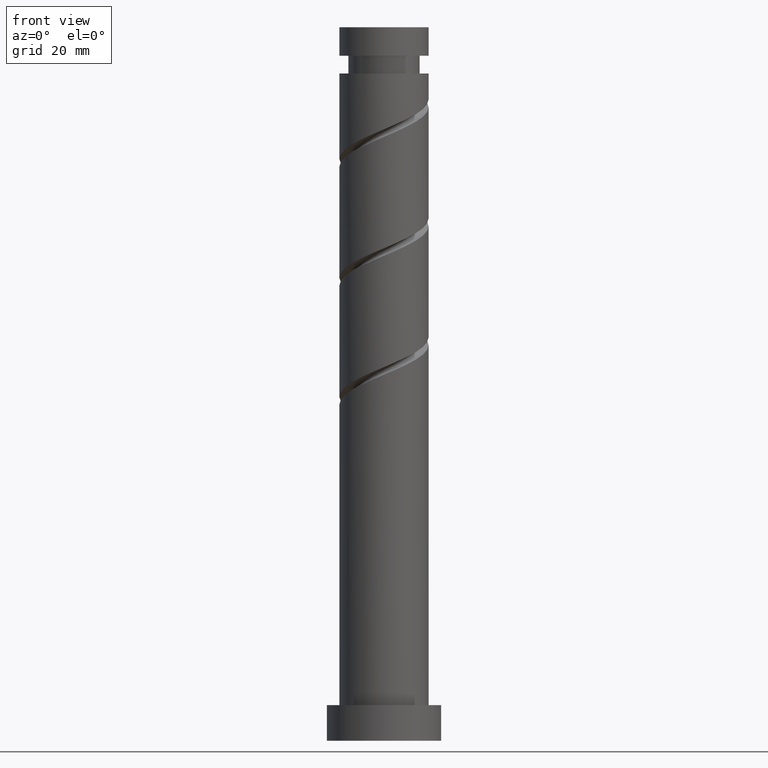
[diagram: clean part render]
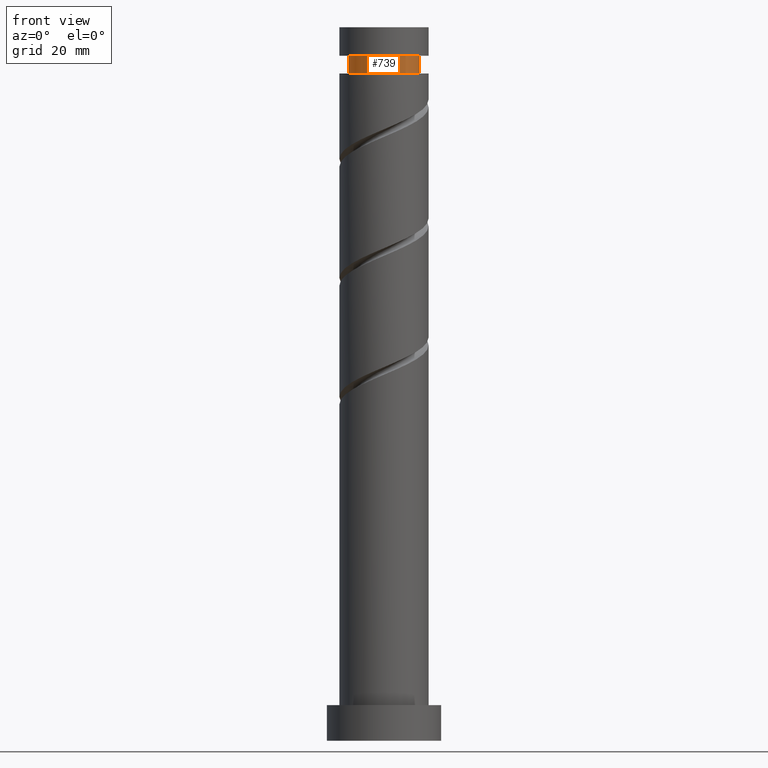
[diagram: same view with one face highlighted and labeled with its STEP entity id]
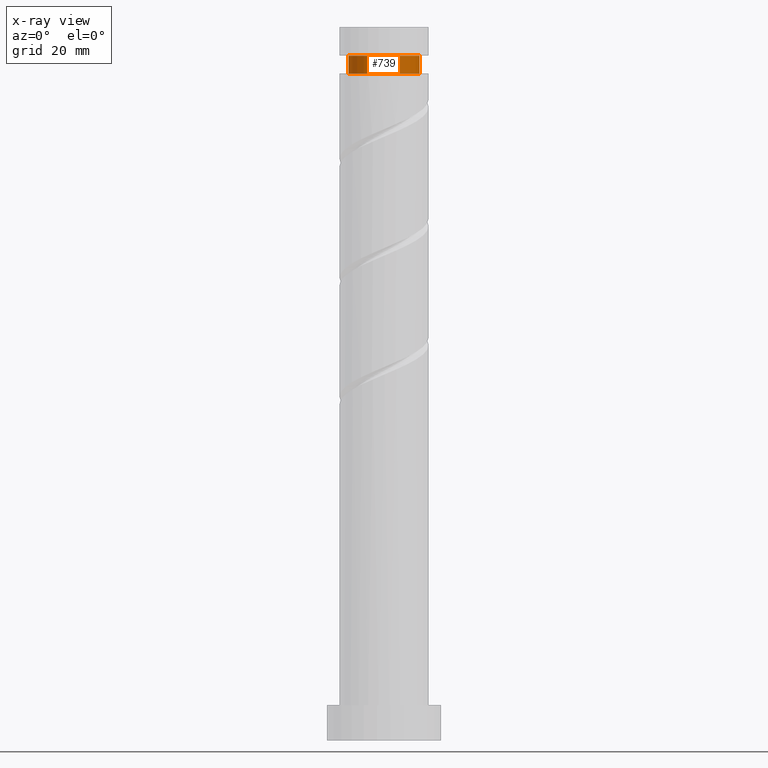
[diagram: x-ray of the same camera — body ghosted, the highlighted face saturated]
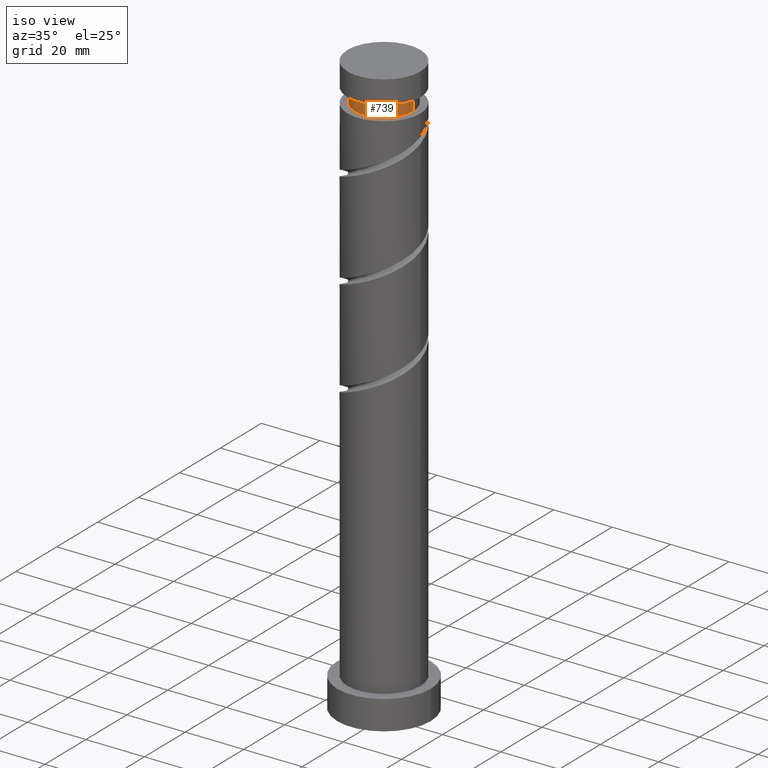
[diagram: same view with one face highlighted and labeled with its STEP entity id]
A machine part, front view. The second image highlights one B-rep face of the part: STEP entity #739.
The next image is the same camera in x-ray: the body ghosted, the highlighted face saturated — about 0% of this face is hidden behind the body in this view.
A second angle (iso view) of the same face is appended — the face is thin or edge-on in the first view.
In plain terms, the highlighted cylindrical surface (edge-blend (fillet) strip) has radius 10 mm, axis along (-0, -0, -1).
Its self-contained STEP definition (entity closure, byte-faithful):
#108 = DIRECTION ( 'NONE',  ( -0.000000000000000000, -0.000000000000000000, -1.000000000000000000 ) ) ;
#190 = VERTEX_POINT ( 'NONE', #1533 ) ;
#206 = EDGE_LOOP ( 'NONE', ( #1408, #310, #881, #571 ) ) ;
#212 = CIRCLE ( 'NONE', #1595, 9.999999999999987566 ) ;
#266 = VECTOR ( 'NONE', #703, 1000.000000000000000 ) ;
#301 = EDGE_CURVE ( 'NONE', #448, #1362, #1582, .T. ) ;
#310 = ORIENTED_EDGE ( 'NONE', *, *, #457, .T. ) ;
#394 = DIRECTION ( 'NONE',  ( -0.000000000000000000, -0.000000000000000000, -1.000000000000000000 ) ) ;
#448 = VERTEX_POINT ( 'NONE', #754 ) ;
#452 = CYLINDRICAL_SURFACE ( 'NONE', #1739, 9.999999999999987566 ) ;
#457 = EDGE_CURVE ( 'NONE', #448, #190, #1621, .T. ) ;
#571 = ORIENTED_EDGE ( 'NONE', *, *, #970, .F. ) ;
#611 = EDGE_CURVE ( 'NONE', #190, #982, #1249, .T. ) ;
#619 = CARTESIAN_POINT ( 'NONE',  ( 0.000000000000000000, 0.000000000000000000, 192.0234905849320342 ) ) ;
#703 = DIRECTION ( 'NONE',  ( -0.000000000000000000, -0.000000000000000000, -1.000000000000000000 ) ) ;
#739 = ADVANCED_FACE ( 'NONE', ( #1547 ), #452, .T. ) ;
#754 = CARTESIAN_POINT ( 'NONE',  ( 9.999999999999989342, 1.224646799147351876E-15, 192.0234905849320342 ) ) ;
#805 = CARTESIAN_POINT ( 'NONE',  ( -9.999999999999987566, 0.000000000000000000, 0.000000000000000000 ) ) ;
#860 = AXIS2_PLACEMENT_3D ( 'NONE', #619, #1168, #1697 ) ;
#881 = ORIENTED_EDGE ( 'NONE', *, *, #611, .T. ) ;
#970 = EDGE_CURVE ( 'NONE', #1362, #982, #212, .T. ) ;
#982 = VERTEX_POINT ( 'NONE', #1439 ) ;
#993 = DIRECTION ( 'NONE',  ( -0.000000000000000000, -0.000000000000000000, -1.000000000000000000 ) ) ;
#1067 = VECTOR ( 'NONE', #108, 1000.000000000000000 ) ;
#1168 = DIRECTION ( 'NONE',  ( -0.000000000000000000, -0.000000000000000000, -1.000000000000000000 ) ) ;
#1204 = CARTESIAN_POINT ( 'NONE',  ( 9.999999999999987566, 1.224646799147351679E-15, 0.000000000000000000 ) ) ;
#1249 = LINE ( 'NONE', #805, #266 ) ;
#1271 = DIRECTION ( 'NONE',  ( -1.000000000000000000, 0.000000000000000000, 0.000000000000000000 ) ) ;
#1362 = VERTEX_POINT ( 'NONE', #1677 ) ;
#1408 = ORIENTED_EDGE ( 'NONE', *, *, #301, .F. ) ;
#1439 = CARTESIAN_POINT ( 'NONE',  ( -9.999999999999987566, 0.000000000000000000, 187.0234905849320342 ) ) ;
#1533 = CARTESIAN_POINT ( 'NONE',  ( -9.999999999999989342, 0.000000000000000000, 192.0234905849320342 ) ) ;
#1547 = FACE_OUTER_BOUND ( 'NONE', #206, .T. ) ;
#1582 = LINE ( 'NONE', #1204, #1067 ) ;
#1595 = AXIS2_PLACEMENT_3D ( 'NONE', #1605, #394, #1704 ) ;
#1605 = CARTESIAN_POINT ( 'NONE',  ( 0.000000000000000000, 0.000000000000000000, 187.0234905849320342 ) ) ;
#1621 = CIRCLE ( 'NONE', #860, 9.999999999999989342 ) ;
#1677 = CARTESIAN_POINT ( 'NONE',  ( 9.999999999999987566, 1.224646799147351679E-15, 187.0234905849320342 ) ) ;
#1679 = CARTESIAN_POINT ( 'NONE',  ( 0.000000000000000000, 0.000000000000000000, 0.000000000000000000 ) ) ;
#1697 = DIRECTION ( 'NONE',  ( -1.000000000000000000, 0.000000000000000000, 0.000000000000000000 ) ) ;
#1704 = DIRECTION ( 'NONE',  ( -1.000000000000000000, 0.000000000000000000, 0.000000000000000000 ) ) ;
#1739 = AXIS2_PLACEMENT_3D ( 'NONE', #1679, #993, #1271 ) ;